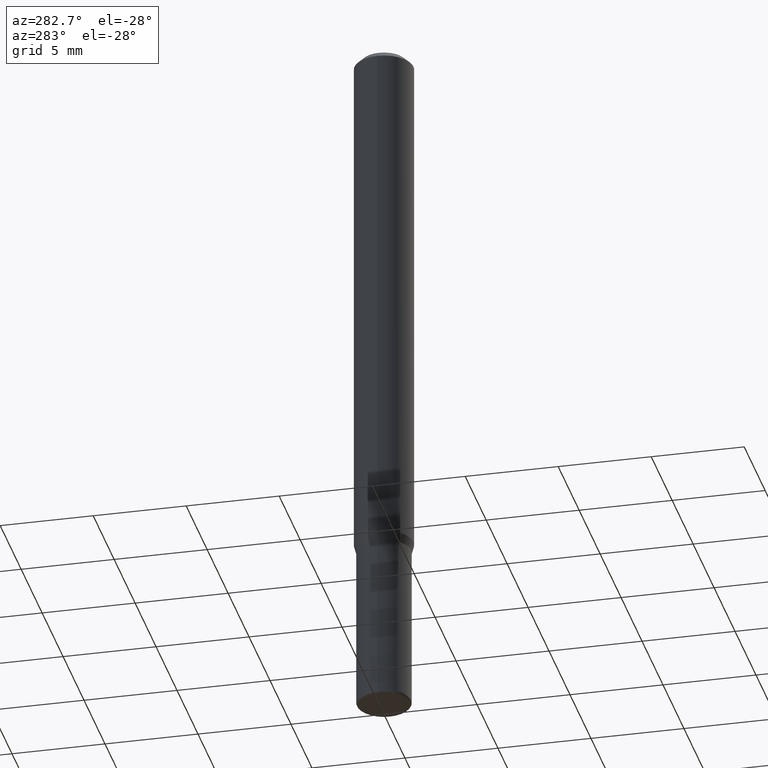
[diagram: clean part render]
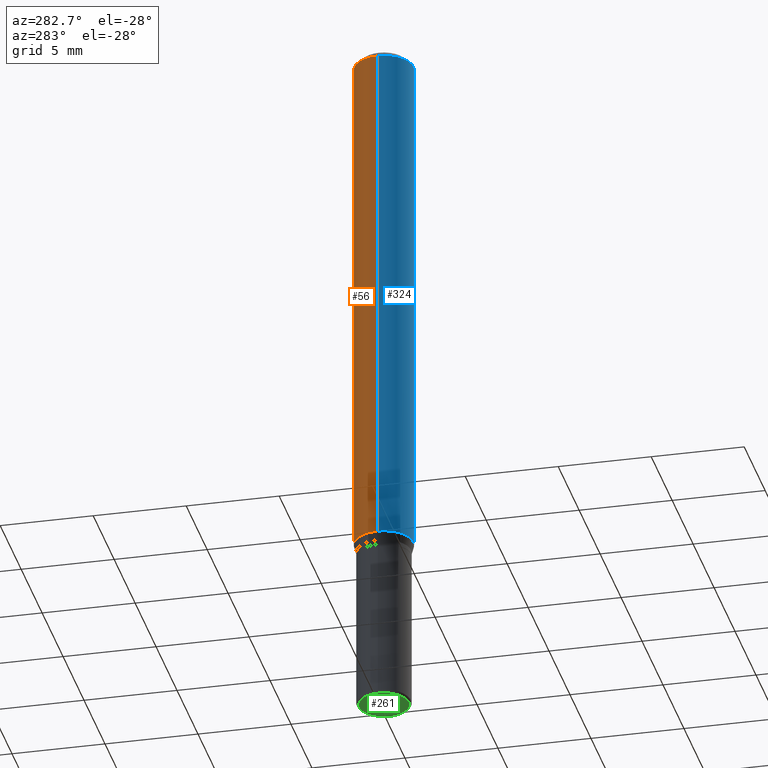
[diagram: same view with three faces highlighted in distinct colors, each labeled with its STEP entity id]
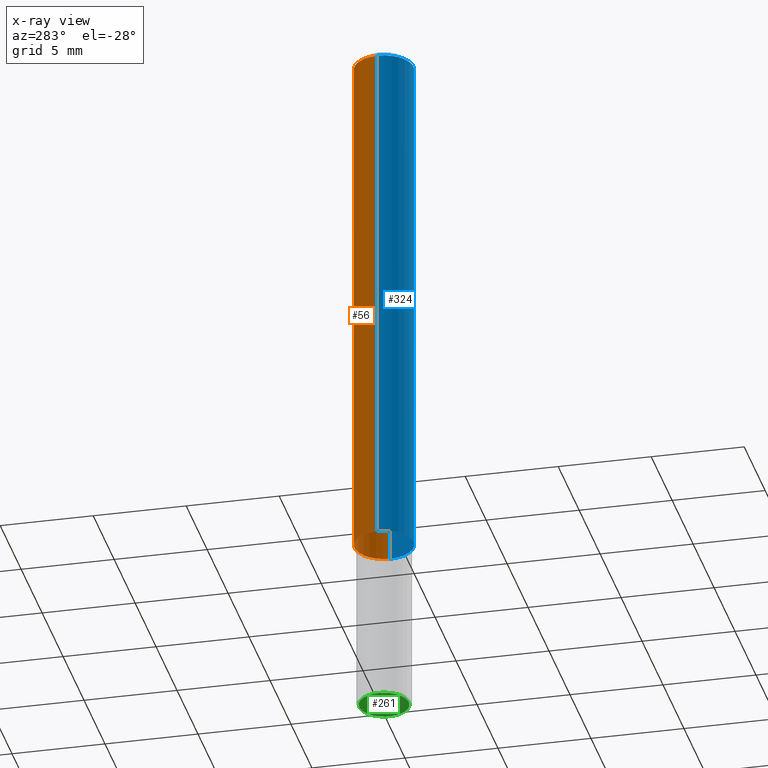
[diagram: x-ray of the same camera — body ghosted, the three highlighted faces saturated]
A machine part, auxiliary view with three faces highlighted in distinct colors.
The next image is the same camera in x-ray (body ghosted, the three faces saturated) — at least one of them is partly hidden behind the body in this view.
Their STEP definitions:

[orange] entity #56 — the highlighted cylindrical surface (edge-blend (fillet) strip) has radius 1.5875 mm, axis along (-0, 0, 1).
#48 = DIRECTION ( 'NONE',  ( 1.000000000000000000, -6.982962677686266711E-15, 0.000000000000000000 ) ) ;
#56 = ADVANCED_FACE ( 'NONE', ( #344 ), #141, .T. ) ;
#57 = VECTOR ( 'NONE', #125, 39.37007874015748143 ) ;
#62 = EDGE_CURVE ( 'NONE', #471, #161, #326, .T. ) ;
#65 = AXIS2_PLACEMENT_3D ( 'NONE', #404, #412, #48 ) ;
#83 = AXIS2_PLACEMENT_3D ( 'NONE', #255, #97, #411 ) ;
#97 = DIRECTION ( 'NONE',  ( -2.445468806185136597E-29, 3.491481338843145583E-15, 1.000000000000000000 ) ) ;
#98 = VERTEX_POINT ( 'NONE', #182 ) ;
#111 = EDGE_CURVE ( 'NONE', #464, #471, #225, .T. ) ;
#125 = DIRECTION ( 'NONE',  ( -2.445468806185136877E-29, 3.491481338843145188E-15, 1.000000000000000000 ) ) ;
#134 = EDGE_LOOP ( 'NONE', ( #318, #160, #468, #214 ) ) ;
#141 = CYLINDRICAL_SURFACE ( 'NONE', #512, 0.06250000000000000000 ) ;
#154 = VECTOR ( 'NONE', #221, 39.37007874015748143 ) ;
#160 = ORIENTED_EDGE ( 'NONE', *, *, #62, .T. ) ;
#161 = VERTEX_POINT ( 'NONE', #351 ) ;
#182 = CARTESIAN_POINT ( 'NONE',  ( 0.06250000000000000000, -4.888073874380378612E-16, -0.01499999999999970281 ) ) ;
#214 = ORIENTED_EDGE ( 'NONE', *, *, #477, .F. ) ;
#221 = DIRECTION ( 'NONE',  ( -2.445468806185136877E-29, 3.491481338843145188E-15, 1.000000000000000000 ) ) ;
#224 = DIRECTION ( 'NONE',  ( 1.000000000000000000, -6.982962677686266711E-15, 4.876176775795935793E-29 ) ) ;
#225 = CIRCLE ( 'NONE', #83, 0.06250000000000000000 ) ;
#248 = CARTESIAN_POINT ( 'NONE',  ( 0.06250000000000000000, -4.369029371579589866E-15, -1.126339745962156247 ) ) ;
#255 = CARTESIAN_POINT ( 'NONE',  ( 2.754428713916944301E-29, -3.932594204224198197E-15, -1.126339745962156247 ) ) ;
#268 = CARTESIAN_POINT ( 'NONE',  ( 0.06250000000000000000, -4.364351673553916694E-16, 3.047610484872459871E-30 ) ) ;
#304 = DIRECTION ( 'NONE',  ( -2.445468806185136597E-29, 3.491481338843145583E-15, 1.000000000000000000 ) ) ;
#318 = ORIENTED_EDGE ( 'NONE', *, *, #111, .T. ) ;
#326 = LINE ( 'NONE', #480, #57 ) ;
#343 = EDGE_CURVE ( 'NONE', #98, #161, #503, .T. ) ;
#344 = FACE_OUTER_BOUND ( 'NONE', #134, .T. ) ;
#351 = CARTESIAN_POINT ( 'NONE',  ( -0.06250000000000000000, -1.548394002303359430E-15, -0.01499999999999970281 ) ) ;
#404 = CARTESIAN_POINT ( 'NONE',  ( 3.668203209277632395E-31, -5.237222008264614861E-17, -0.01499999999999970281 ) ) ;
#411 = DIRECTION ( 'NONE',  ( 1.000000000000000000, -6.982962677686262766E-15, 0.000000000000000000 ) ) ;
#412 = DIRECTION ( 'NONE',  ( -2.445468806185136597E-29, 3.491481338843145583E-15, 1.000000000000000000 ) ) ;
#430 = LINE ( 'NONE', #268, #154 ) ;
#464 = VERTEX_POINT ( 'NONE', #248 ) ;
#468 = ORIENTED_EDGE ( 'NONE', *, *, #343, .F. ) ;
#471 = VERTEX_POINT ( 'NONE', #482 ) ;
#477 = EDGE_CURVE ( 'NONE', #464, #98, #430, .T. ) ;
#480 = CARTESIAN_POINT ( 'NONE',  ( -0.06250000000000000000, 4.440892098500626162E-16, -3.074334431409316114E-30 ) ) ;
#482 = CARTESIAN_POINT ( 'NONE',  ( -0.06250000000000000000, -3.488504994374134792E-15, -1.126339745962156247 ) ) ;
#500 = CARTESIAN_POINT ( 'NONE',  ( 0.000000000000000000, 0.000000000000000000, 0.000000000000000000 ) ) ;
#503 = CIRCLE ( 'NONE', #65, 0.06250000000000000000 ) ;
#512 = AXIS2_PLACEMENT_3D ( 'NONE', #500, #304, #224 ) ;

[blue] entity #324 — the highlighted cylindrical surface (edge-blend (fillet) strip) has radius 1.5875 mm, axis along (-0, 0, 1).
#14 = DIRECTION ( 'NONE',  ( -2.445468806185136597E-29, 3.491481338843145583E-15, 1.000000000000000000 ) ) ;
#16 = AXIS2_PLACEMENT_3D ( 'NONE', #409, #14, #127 ) ;
#57 = VECTOR ( 'NONE', #125, 39.37007874015748143 ) ;
#62 = EDGE_CURVE ( 'NONE', #471, #161, #326, .T. ) ;
#63 = ORIENTED_EDGE ( 'NONE', *, *, #477, .T. ) ;
#98 = VERTEX_POINT ( 'NONE', #182 ) ;
#109 = ORIENTED_EDGE ( 'NONE', *, *, #497, .F. ) ;
#125 = DIRECTION ( 'NONE',  ( -2.445468806185136877E-29, 3.491481338843145188E-15, 1.000000000000000000 ) ) ;
#127 = DIRECTION ( 'NONE',  ( 1.000000000000000000, -6.982962677686266711E-15, 4.876176775795935793E-29 ) ) ;
#154 = VECTOR ( 'NONE', #221, 39.37007874015748143 ) ;
#157 = EDGE_LOOP ( 'NONE', ( #341, #358, #63, #109 ) ) ;
#161 = VERTEX_POINT ( 'NONE', #351 ) ;
#182 = CARTESIAN_POINT ( 'NONE',  ( 0.06250000000000000000, -4.888073874380378612E-16, -0.01499999999999970281 ) ) ;
#184 = DIRECTION ( 'NONE',  ( -2.445468806185136597E-29, 3.491481338843145583E-15, 1.000000000000000000 ) ) ;
#186 = DIRECTION ( 'NONE',  ( 1.000000000000000000, -6.982962677686262766E-15, 0.000000000000000000 ) ) ;
#188 = CARTESIAN_POINT ( 'NONE',  ( 2.754428713916944301E-29, -3.932594204224198197E-15, -1.126339745962156247 ) ) ;
#192 = AXIS2_PLACEMENT_3D ( 'NONE', #405, #393, #216 ) ;
#198 = EDGE_CURVE ( 'NONE', #471, #464, #301, .T. ) ;
#216 = DIRECTION ( 'NONE',  ( 1.000000000000000000, -6.982962677686266711E-15, 0.000000000000000000 ) ) ;
#221 = DIRECTION ( 'NONE',  ( -2.445468806185136877E-29, 3.491481338843145188E-15, 1.000000000000000000 ) ) ;
#248 = CARTESIAN_POINT ( 'NONE',  ( 0.06250000000000000000, -4.369029371579589866E-15, -1.126339745962156247 ) ) ;
#267 = CIRCLE ( 'NONE', #192, 0.06250000000000000000 ) ;
#268 = CARTESIAN_POINT ( 'NONE',  ( 0.06250000000000000000, -4.364351673553916694E-16, 3.047610484872459871E-30 ) ) ;
#298 = FACE_OUTER_BOUND ( 'NONE', #157, .T. ) ;
#301 = CIRCLE ( 'NONE', #330, 0.06250000000000000000 ) ;
#324 = ADVANCED_FACE ( 'NONE', ( #298 ), #465, .T. ) ;
#326 = LINE ( 'NONE', #480, #57 ) ;
#330 = AXIS2_PLACEMENT_3D ( 'NONE', #188, #184, #186 ) ;
#341 = ORIENTED_EDGE ( 'NONE', *, *, #62, .F. ) ;
#351 = CARTESIAN_POINT ( 'NONE',  ( -0.06250000000000000000, -1.548394002303359430E-15, -0.01499999999999970281 ) ) ;
#358 = ORIENTED_EDGE ( 'NONE', *, *, #198, .T. ) ;
#393 = DIRECTION ( 'NONE',  ( -2.445468806185136597E-29, 3.491481338843145583E-15, 1.000000000000000000 ) ) ;
#405 = CARTESIAN_POINT ( 'NONE',  ( 3.668203209277632395E-31, -5.237222008264614861E-17, -0.01499999999999970281 ) ) ;
#409 = CARTESIAN_POINT ( 'NONE',  ( 0.000000000000000000, 0.000000000000000000, 0.000000000000000000 ) ) ;
#430 = LINE ( 'NONE', #268, #154 ) ;
#464 = VERTEX_POINT ( 'NONE', #248 ) ;
#465 = CYLINDRICAL_SURFACE ( 'NONE', #16, 0.06250000000000000000 ) ;
#471 = VERTEX_POINT ( 'NONE', #482 ) ;
#477 = EDGE_CURVE ( 'NONE', #464, #98, #430, .T. ) ;
#480 = CARTESIAN_POINT ( 'NONE',  ( -0.06250000000000000000, 4.440892098500626162E-16, -3.074334431409316114E-30 ) ) ;
#482 = CARTESIAN_POINT ( 'NONE',  ( -0.06250000000000000000, -3.488504994374134792E-15, -1.126339745962156247 ) ) ;
#497 = EDGE_CURVE ( 'NONE', #161, #98, #267, .T. ) ;

[green] entity #261 — the highlighted planar face has unit normal (-0, 0, 1).
#22 = DIRECTION ( 'NONE',  ( -2.445468806185136597E-29, 3.491481338843145583E-15, 1.000000000000000000 ) ) ;
#24 = CARTESIAN_POINT ( 'NONE',  ( 3.668203209277706016E-29, -5.237222008264719754E-15, -1.500000000000000444 ) ) ;
#30 = DIRECTION ( 'NONE',  ( -2.438088387897960049E-29, 3.491481338843145188E-15, 1.000000000000000000 ) ) ;
#55 = DIRECTION ( 'NONE',  ( 1.000000000000000000, -6.982962677686267499E-15, 0.000000000000000000 ) ) ;
#88 = DIRECTION ( 'NONE',  ( -2.445468806185136597E-29, 3.491481338843145583E-15, 1.000000000000000000 ) ) ;
#107 = ORIENTED_EDGE ( 'NONE', *, *, #162, .F. ) ;
#114 = AXIS2_PLACEMENT_3D ( 'NONE', #390, #30, #515 ) ;
#118 = FACE_OUTER_BOUND ( 'NONE', #349, .T. ) ;
#136 = CIRCLE ( 'NONE', #421, 0.05250000000000000500 ) ;
#162 = EDGE_CURVE ( 'NONE', #320, #399, #432, .T. ) ;
#177 = AXIS2_PLACEMENT_3D ( 'NONE', #499, #88, #336 ) ;
#193 = EDGE_CURVE ( 'NONE', #399, #320, #136, .T. ) ;
#261 = ADVANCED_FACE ( 'NONE', ( #118 ), #271, .F. ) ;
#271 = PLANE ( 'NONE',  #114 ) ;
#320 = VERTEX_POINT ( 'NONE', #386 ) ;
#325 = CARTESIAN_POINT ( 'NONE',  ( 0.05250000000000000500, -5.603827548843248915E-15, -1.500000000000000444 ) ) ;
#336 = DIRECTION ( 'NONE',  ( 1.000000000000000000, -6.982962677686267499E-15, 0.000000000000000000 ) ) ;
#349 = EDGE_LOOP ( 'NONE', ( #428, #107 ) ) ;
#386 = CARTESIAN_POINT ( 'NONE',  ( -0.05250000000000000500, -4.837694800249555210E-15, -1.500000000000000444 ) ) ;
#390 = CARTESIAN_POINT ( 'NONE',  ( 3.582686580359767159E-29, -5.359686688179454114E-15, -1.500000000000000444 ) ) ;
#399 = VERTEX_POINT ( 'NONE', #325 ) ;
#421 = AXIS2_PLACEMENT_3D ( 'NONE', #24, #22, #55 ) ;
#428 = ORIENTED_EDGE ( 'NONE', *, *, #193, .F. ) ;
#432 = CIRCLE ( 'NONE', #177, 0.05250000000000000500 ) ;
#499 = CARTESIAN_POINT ( 'NONE',  ( 3.668203209277706016E-29, -5.237222008264719754E-15, -1.500000000000000444 ) ) ;
#515 = DIRECTION ( 'NONE',  ( 1.000000000000000000, -6.982962677686265922E-15, 4.876176775795935793E-29 ) ) ;